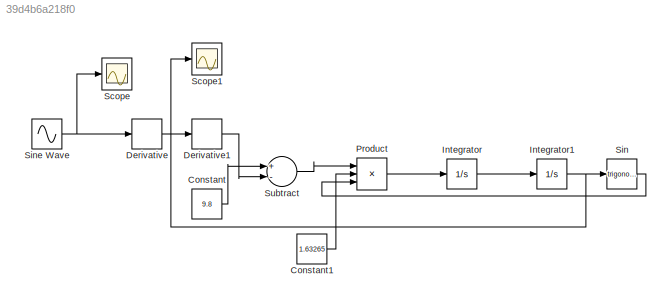
MODEL slx_39d4b6a218f0
KIND model
CONFIG AbsTol = auto
CONFIG EnableMultiTasking = off
CONFIG FixedStep = 0.005
CONFIG MaxStep = auto
CONFIG MinStep = auto
CONFIG RelTol = 1e-3
CONFIG SampleTimeConstraint = Unconstrained
CONFIG Solver = ode4
CONFIG SolverName = ode4
CONFIG StartTime = 0.0
CONFIG StopTime = 50
BLOCK [Constant] Constant
  Value = 9.8
BLOCK [Constant] Constant1
  Value = 1.63265
BLOCK [Derivative] Derivative
BLOCK [Derivative] Derivative1
BLOCK [Integrator] Integrator
  Ports = [1, 1]
BLOCK [Integrator] Integrator1
  InitialCondition = 0.017
  Ports = [1, 1]
BLOCK [Product] Product
  InputSameDT = off
  Inputs = 3
  OutDataTypeStr = Inherit: Inherit via internal rule
  Ports = [3, 1]
  RndMeth = Floor
  SaturateOnIntegerOverflow = off
BLOCK [Scope] Scope
  Floating = off
  NumInputPorts = 1
  Ports = [1]
  ScopeSpecificationString = Simulink.scopes.TimeScopeBlockCfg('CurrentConfiguration', extmgr.ConfigurationSet(extmgr.Configuration('Core','General UI',true),extmgr.Configuration('Core','Source UI',true),extmgr.Configuration('Sources','WiredSimulink',true),extmgr.Configuration('Visuals','Time Domain',true,'SerializedDisplays',{struct('MinYLimReal','-0.3125','MaxYLimReal','0.3125','YLabelReal','','MinYLimMag','0.00000','MaxYLi...<+1352ch>
BLOCK [Scope] Scope1
  Floating = off
  NumInputPorts = 1
  Ports = [1]
  ScopeSpecificationString = Simulink.scopes.TimeScopeBlockCfg('CurrentConfiguration', extmgr.ConfigurationSet(extmgr.Configuration('Core','General UI',true),extmgr.Configuration('Core','Source UI',true),extmgr.Configuration('Sources','WiredSimulink',true,'DataLoggingVariableName','ScopeData1'),extmgr.Configuration('Visuals','Time Domain',true,'SerializedDisplays',{struct('MinYLimReal','-0.35688','MaxYLimReal','0.35319','YLab...<+1399ch>
BLOCK [Trigonometry] Sin
  Ports = [1, 1]
BLOCK [Sin] Sine Wave
  Amplitude = 0.25
  Frequency = 260
  Phase = 1.57
  Ports = [0, 1]
  SampleTime = 0.005
BLOCK [Sum] Subtract
  InputSameDT = off
  Inputs = +-
  OutDataTypeStr = Inherit: Inherit via internal rule
  Ports = [2, 1]
  SaturateOnIntegerOverflow = off
LINE Constant1:1 -> Product:2
LINE Constant:1 -> Subtract:1
LINE Derivative1:1 -> Subtract:2
LINE Derivative:1 -> Derivative1:1
NET Integrator1:1 -> Scope1:1, Sin:1
LINE Integrator:1 -> Integrator1:1
LINE Product:1 -> Integrator:1
LINE Sin:1 -> Product:3
NET Sine Wave:1 -> Derivative:1, Scope:1
LINE Subtract:1 -> Product:1
note: NET lines group one-source signal fan-out (src -> all destinations, sorted); 1:1 wires keep LINE
